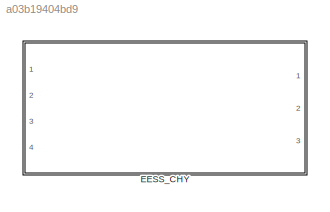
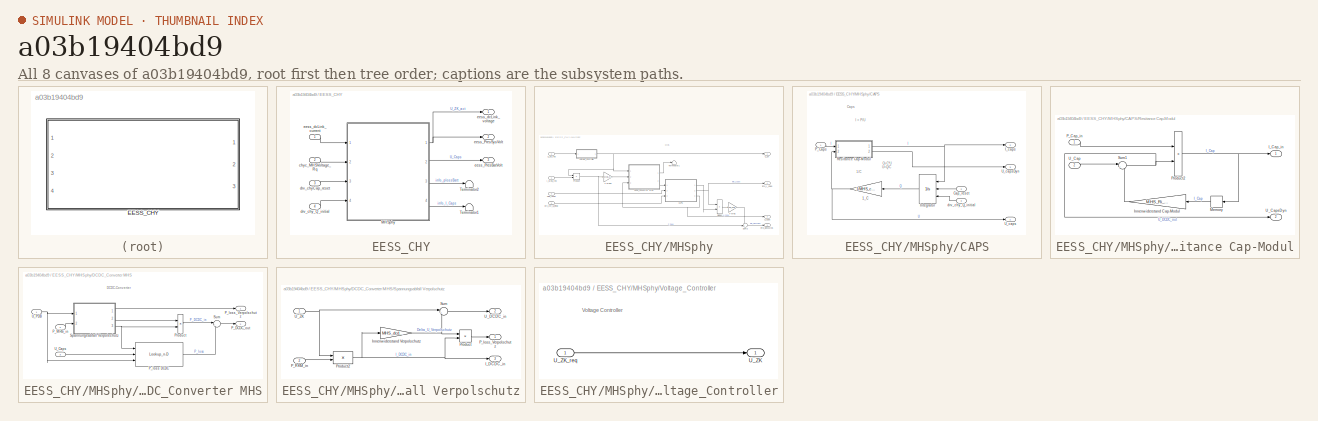
[diagram: thumbnail index - all 8 canvases of the model, root first then tree order]
MODEL slx_a03b19404bd9
KIND library
CONFIG AbsTol = auto
CONFIG FixedStep = auto
CONFIG MaxStep = auto
CONFIG MinStep = auto
CONFIG RelTol = 1e-3
CONFIG SampleTimeConstraint = Unconstrained
CONFIG Solver = ode45
CONFIG SolverMode = Auto
CONFIG SolverName = ode45
CONFIG StartTime = 0.0
CONFIG StopTime = 10.0
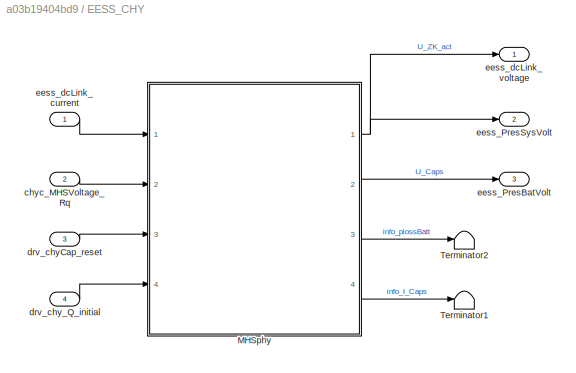
BLOCK [SubSystem] EESS_CHY
  Ports = [4, 3]
  RequestExecContextInheritance = off
  Variant = off
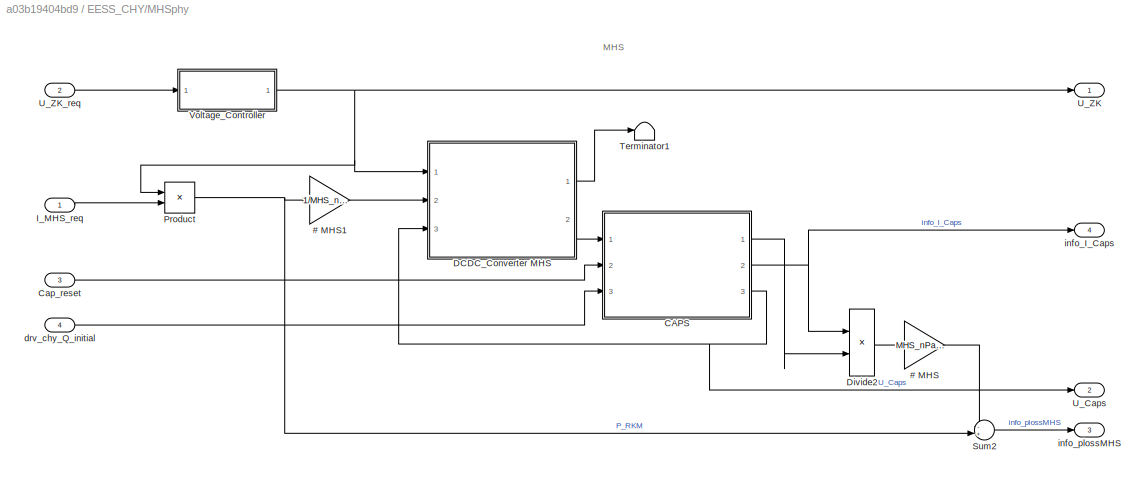
BLOCK [SubSystem] EESS_CHY/MHSphy
  Ports = [4, 4]
  RequestExecContextInheritance = off
  Variant = off
BLOCK [Gain] EESS_CHY/MHSphy/# MHS
  Gain = MHS_nParallel
  OutDataTypeStr = Inherit: Inherit via internal rule
  ParamDataTypeStr = Inherit: Inherit via internal rule
  SaturateOnIntegerOverflow = off
BLOCK [Gain] EESS_CHY/MHSphy/# MHS1
  Gain = 1/MHS_nParallel
  OutDataTypeStr = Inherit: Inherit via internal rule
  ParamDataTypeStr = Inherit: Inherit via internal rule
  SaturateOnIntegerOverflow = off
BLOCK [SubSystem] EESS_CHY/MHSphy/CAPS
  Ports = [3, 3]
  RequestExecContextInheritance = off
  Variant = off
BLOCK [Gain] EESS_CHY/MHSphy/CAPS/1_C
  Gain = 1/MHS_capacity
  OutDataTypeStr = Inherit: Inherit via internal rule
  ParamDataTypeStr = Inherit: Inherit via internal rule
  SaturateOnIntegerOverflow = off
BLOCK [Inport] EESS_CHY/MHSphy/CAPS/Cap_reset
  IconDisplay = Port number
  Port = 2
BLOCK [Outport] EESS_CHY/MHSphy/CAPS/I_caps
  IconDisplay = Port number
  Port = 2
BLOCK [Integrator] EESS_CHY/MHSphy/CAPS/Integrator
  ExternalReset = rising
  InitialCondition = (sqrt((0.5*(21.6^2-12^2))+12^2))*750
  InitialConditionSource = external
  LowerSaturationLimit = -20000
  Ports = [3, 1]
  UpperSaturationLimit = 16300
BLOCK [Inport] EESS_CHY/MHSphy/CAPS/P_Caps
  IconDisplay = Port number
BLOCK [SubSystem] EESS_CHY/MHSphy/CAPS/Resitance Cap-Modul
  Ports = [2, 2]
  RequestExecContextInheritance = off
  Variant = off
BLOCK [Outport] EESS_CHY/MHSphy/CAPS/Resitance Cap-Modul/I_Cap_in
  IconDisplay = Port number
BLOCK [Gain] EESS_CHY/MHSphy/CAPS/Resitance Cap-Modul/Innenwiderstand Cap-Modul
  Gain = MHS_Ri_Caps
  OutDataTypeStr = Inherit: Inherit via internal rule
  ParamDataTypeStr = Inherit: Inherit via internal rule
  SaturateOnIntegerOverflow = off
BLOCK [Memory] EESS_CHY/MHSphy/CAPS/Resitance Cap-Modul/Memory
BLOCK [Inport] EESS_CHY/MHSphy/CAPS/Resitance Cap-Modul/P_Cap_in
  IconDisplay = Port number
BLOCK [Product] EESS_CHY/MHSphy/CAPS/Resitance Cap-Modul/Product2
  InputSameDT = off
  Inputs = */
  OutDataTypeStr = Inherit: Inherit via internal rule
  Ports = [2, 1]
  SaturateOnIntegerOverflow = off
BLOCK [Sum] EESS_CHY/MHSphy/CAPS/Resitance Cap-Modul/Sum1
  IconShape = round
  InputSameDT = off
  Inputs = |++
  OutDataTypeStr = Inherit: Inherit via internal rule
  Ports = [2, 1]
  SaturateOnIntegerOverflow = off
BLOCK [Inport] EESS_CHY/MHSphy/CAPS/Resitance Cap-Modul/U_Cap
  IconDisplay = Port number
  Port = 2
BLOCK [Outport] EESS_CHY/MHSphy/CAPS/Resitance Cap-Modul/U_CapsDyn
  IconDisplay = Port number
  Port = 2
BLOCK [Outport] EESS_CHY/MHSphy/CAPS/U_caps
  IconDisplay = Port number
BLOCK [Outport] EESS_CHY/MHSphy/CAPS/U_capsDyn
  IconDisplay = Port number
  Port = 3
BLOCK [Inport] EESS_CHY/MHSphy/CAPS/drv_chy_Q_initial
  IconDisplay = Port number
  Port = 3
BLOCK [Inport] EESS_CHY/MHSphy/Cap_reset 
  IconDisplay = Port number
  Port = 3
BLOCK [SubSystem] EESS_CHY/MHSphy/DCDC_Converter MHS
  Ports = [3, 2]
  RequestExecContextInheritance = off
  Variant = off
BLOCK [Outport] EESS_CHY/MHSphy/DCDC_Converter MHS/P_DCDC_out
  IconDisplay = Port number
  Port = 2
BLOCK [Inport] EESS_CHY/MHSphy/DCDC_Converter MHS/P_MHS_in
  IconDisplay = Port number
  Port = 2
BLOCK [Lookup_n-D] EESS_CHY/MHSphy/DCDC_Converter MHS/P_loss DCDC
  BreakpointsForDimension1 = MHS_dcdc_I_ZK
  BreakpointsForDimension2 = MHS_dcdc_U_Cap
  BreakpointsForDimension3 = MHS_dcdc_U_ZK
  NumberOfTableDimensions = 3
  Ports = [3, 1]
  RndMeth = Simplest
  Table = MHS_dcdc_Ploss
BLOCK [Outport] EESS_CHY/MHSphy/DCDC_Converter MHS/P_loss_Verpolschutz
  IconDisplay = Port number
BLOCK [Product] EESS_CHY/MHSphy/DCDC_Converter MHS/Product
  InputSameDT = off
  OutDataTypeStr = Inherit: Inherit via internal rule
  Ports = [2, 1]
  SaturateOnIntegerOverflow = off
BLOCK [SubSystem] EESS_CHY/MHSphy/DCDC_Converter MHS/Spannungsabfall Verpolschutz
  Ports = [2, 3]
  RequestExecContextInheritance = off
  Variant = off
BLOCK [Outport] EESS_CHY/MHSphy/DCDC_Converter MHS/Spannungsabfall Verpolschutz/I_DCDC_in
  IconDisplay = Port number
  Port = 3
BLOCK [Gain] EESS_CHY/MHSphy/DCDC_Converter MHS/Spannungsabfall Verpolschutz/Innenwiderstand Verpolschutz
  Gain = MHS_dcdc_Ri_Verpolschutz
  OutDataTypeStr = Inherit: Inherit via internal rule
  ParamDataTypeStr = Inherit: Inherit via internal rule
  SaturateOnIntegerOverflow = off
BLOCK [Inport] EESS_CHY/MHSphy/DCDC_Converter MHS/Spannungsabfall Verpolschutz/P_RKM_in
  IconDisplay = Port number
  Port = 2
BLOCK [Outport] EESS_CHY/MHSphy/DCDC_Converter MHS/Spannungsabfall Verpolschutz/P_loss_Verpolschutz
  IconDisplay = Port number
BLOCK [Product] EESS_CHY/MHSphy/DCDC_Converter MHS/Spannungsabfall Verpolschutz/Product
  InputSameDT = off
  OutDataTypeStr = Inherit: Inherit via internal rule
  Ports = [2, 1]
  SaturateOnIntegerOverflow = off
BLOCK [Product] EESS_CHY/MHSphy/DCDC_Converter MHS/Spannungsabfall Verpolschutz/Product2
  InputSameDT = off
  Inputs = /*
  OutDataTypeStr = Inherit: Inherit via internal rule
  Ports = [2, 1]
  SaturateOnIntegerOverflow = off
BLOCK [Sum] EESS_CHY/MHSphy/DCDC_Converter MHS/Spannungsabfall Verpolschutz/Sum
  IconShape = round
  InputSameDT = off
  Inputs = |+-
  OutDataTypeStr = Inherit: Inherit via internal rule
  Ports = [2, 1]
  SaturateOnIntegerOverflow = off
BLOCK [Outport] EESS_CHY/MHSphy/DCDC_Converter MHS/Spannungsabfall Verpolschutz/U_DCDC_in
  IconDisplay = Port number
  Port = 2
BLOCK [Inport] EESS_CHY/MHSphy/DCDC_Converter MHS/Spannungsabfall Verpolschutz/U_ZK
  IconDisplay = Port number
BLOCK [Sum] EESS_CHY/MHSphy/DCDC_Converter MHS/Sum
  IconShape = round
  InputSameDT = off
  Inputs = |+-
  OutDataTypeStr = Inherit: Inherit via internal rule
  Ports = [2, 1]
  SaturateOnIntegerOverflow = off
BLOCK [Inport] EESS_CHY/MHSphy/DCDC_Converter MHS/U_Caps
  IconDisplay = Port number
  Port = 3
BLOCK [Inport] EESS_CHY/MHSphy/DCDC_Converter MHS/U_PDB
  IconDisplay = Port number
BLOCK [Product] EESS_CHY/MHSphy/Divide2
  InputSameDT = off
  OutDataTypeStr = Inherit: Inherit via internal rule
  Ports = [2, 1]
  RndMeth = Floor
  SaturateOnIntegerOverflow = off
BLOCK [Inport] EESS_CHY/MHSphy/I_MHS_req 
  IconDisplay = Port number
BLOCK [Product] EESS_CHY/MHSphy/Product
  InputSameDT = off
  OutDataTypeStr = Inherit: Inherit via internal rule
  Ports = [2, 1]
  SaturateOnIntegerOverflow = off
BLOCK [Sum] EESS_CHY/MHSphy/Sum2
  IconShape = round
  InputSameDT = off
  Inputs = -+|
  OutDataTypeStr = Inherit: Inherit via internal rule
  Ports = [2, 1]
  SaturateOnIntegerOverflow = off
BLOCK [Terminator] EESS_CHY/MHSphy/Terminator1
BLOCK [Outport] EESS_CHY/MHSphy/U_Caps
  IconDisplay = Port number
  InitialOutput = 0
  Port = 2
BLOCK [Outport] EESS_CHY/MHSphy/U_ZK
  IconDisplay = Port number
  InitialOutput = 0
BLOCK [Inport] EESS_CHY/MHSphy/U_ZK_req
  IconDisplay = Port number
  Port = 2
BLOCK [SubSystem] EESS_CHY/MHSphy/Voltage_Controller
  Ports = [1, 1]
  RequestExecContextInheritance = off
  Variant = off
BLOCK [Outport] EESS_CHY/MHSphy/Voltage_Controller/U_ZK
  IconDisplay = Port number
BLOCK [Inport] EESS_CHY/MHSphy/Voltage_Controller/U_ZK_req
  IconDisplay = Port number
BLOCK [Inport] EESS_CHY/MHSphy/drv_chy_Q_initial
  IconDisplay = Port number
  Port = 4
BLOCK [Outport] EESS_CHY/MHSphy/info_I_Caps
  IconDisplay = Port number
  InitialOutput = 0
  Port = 4
BLOCK [Outport] EESS_CHY/MHSphy/info_plossMHS
  IconDisplay = Port number
  InitialOutput = 0
  Port = 3
BLOCK [Terminator] EESS_CHY/Terminator1
BLOCK [Terminator] EESS_CHY/Terminator2
BLOCK [Inport] EESS_CHY/chyc_MHSVoltage_Rq
  IconDisplay = Port number
  Port = 2
BLOCK [Inport] EESS_CHY/drv_chyCap_reset
  IconDisplay = Port number
  Port = 3
BLOCK [Inport] EESS_CHY/drv_chy_Q_initial
  IconDisplay = Port number
  Port = 4
BLOCK [Outport] EESS_CHY/eess_PresBatVolt
  IconDisplay = Port number
  InitialOutput = 0
  Port = 3
BLOCK [Outport] EESS_CHY/eess_PresSysVolt
  IconDisplay = Port number
  InitialOutput = 0
  Port = 2
BLOCK [Inport] EESS_CHY/eess_dcLink_current
  IconDisplay = Port number
BLOCK [Outport] EESS_CHY/eess_dcLink_voltage
  IconDisplay = Port number
  InitialOutput = 0
ANNOTATION EESS_CHY/MHSphy: MHS
ANNOTATION EESS_CHY/MHSphy/CAPS: 1/C
ANNOTATION EESS_CHY/MHSphy/CAPS: Caps
ANNOTATION EESS_CHY/MHSphy/CAPS: I = P/U
ANNOTATION EESS_CHY/MHSphy/CAPS: Q=C*U U=Q/C
ANNOTATION EESS_CHY/MHSphy/DCDC_Converter MHS: DCDC-Converter
ANNOTATION EESS_CHY/MHSphy/Voltage_Controller: Voltage Controller
LINE EESS_CHY/MHSphy/# MHS1:1 -> EESS_CHY/MHSphy/DCDC_Converter MHS:2
LINE EESS_CHY/MHSphy/# MHS:1 -> EESS_CHY/MHSphy/Sum2:1
NET EESS_CHY/MHSphy/CAPS/1_C:1 -> EESS_CHY/MHSphy/CAPS/Resitance Cap-Modul:2, EESS_CHY/MHSphy/CAPS/U_caps:1
LINE EESS_CHY/MHSphy/CAPS/Cap_reset:1 -> EESS_CHY/MHSphy/CAPS/Integrator:2
LINE EESS_CHY/MHSphy/CAPS/Integrator:1 -> EESS_CHY/MHSphy/CAPS/1_C:1
LINE EESS_CHY/MHSphy/CAPS/P_Caps:1 -> EESS_CHY/MHSphy/CAPS/Resitance Cap-Modul:1
LINE EESS_CHY/MHSphy/CAPS/Resitance Cap-Modul/Innenwiderstand Cap-Modul:1 -> EESS_CHY/MHSphy/CAPS/Resitance Cap-Modul/Sum1:2
LINE EESS_CHY/MHSphy/CAPS/Resitance Cap-Modul/Memory:1 -> EESS_CHY/MHSphy/CAPS/Resitance Cap-Modul/Innenwiderstand Cap-Modul:1
LINE EESS_CHY/MHSphy/CAPS/Resitance Cap-Modul/P_Cap_in:1 -> EESS_CHY/MHSphy/CAPS/Resitance Cap-Modul/Product2:1
NET EESS_CHY/MHSphy/CAPS/Resitance Cap-Modul/Product2:1 -> EESS_CHY/MHSphy/CAPS/Resitance Cap-Modul/I_Cap_in:1, EESS_CHY/MHSphy/CAPS/Resitance Cap-Modul/Memory:1
NET EESS_CHY/MHSphy/CAPS/Resitance Cap-Modul/Sum1:1 -> EESS_CHY/MHSphy/CAPS/Resitance Cap-Modul/Product2:2, EESS_CHY/MHSphy/CAPS/Resitance Cap-Modul/U_CapsDyn:1
LINE EESS_CHY/MHSphy/CAPS/Resitance Cap-Modul/U_Cap:1 -> EESS_CHY/MHSphy/CAPS/Resitance Cap-Modul/Sum1:1
NET EESS_CHY/MHSphy/CAPS/Resitance Cap-Modul:1 -> EESS_CHY/MHSphy/CAPS/I_caps:1, EESS_CHY/MHSphy/CAPS/Integrator:1
LINE EESS_CHY/MHSphy/CAPS/Resitance Cap-Modul:2 -> EESS_CHY/MHSphy/CAPS/U_capsDyn:1
LINE EESS_CHY/MHSphy/CAPS/drv_chy_Q_initial:1 -> EESS_CHY/MHSphy/CAPS/Integrator:3
LINE EESS_CHY/MHSphy/CAPS:1 -> EESS_CHY/MHSphy/Divide2:2
NET EESS_CHY/MHSphy/CAPS:2 -> EESS_CHY/MHSphy/Divide2:1, EESS_CHY/MHSphy/info_I_Caps:1
NET EESS_CHY/MHSphy/CAPS:3 -> EESS_CHY/MHSphy/DCDC_Converter MHS:3, EESS_CHY/MHSphy/U_Caps:1
LINE EESS_CHY/MHSphy/Cap_reset :1 -> EESS_CHY/MHSphy/CAPS:2
LINE EESS_CHY/MHSphy/DCDC_Converter MHS/P_MHS_in:1 -> EESS_CHY/MHSphy/DCDC_Converter MHS/Spannungsabfall Verpolschutz:2
LINE EESS_CHY/MHSphy/DCDC_Converter MHS/P_loss DCDC:1 -> EESS_CHY/MHSphy/DCDC_Converter MHS/Sum:2
LINE EESS_CHY/MHSphy/DCDC_Converter MHS/Product:1 -> EESS_CHY/MHSphy/DCDC_Converter MHS/Sum:1
NET EESS_CHY/MHSphy/DCDC_Converter MHS/Spannungsabfall Verpolschutz/Innenwiderstand Verpolschutz:1 -> EESS_CHY/MHSphy/DCDC_Converter MHS/Spannungsabfall Verpolschutz/Product:1, EESS_CHY/MHSphy/DCDC_Converter MHS/Spannungsabfall Verpolschutz/Sum:2
LINE EESS_CHY/MHSphy/DCDC_Converter MHS/Spannungsabfall Verpolschutz/P_RKM_in:1 -> EESS_CHY/MHSphy/DCDC_Converter MHS/Spannungsabfall Verpolschutz/Product2:2
NET EESS_CHY/MHSphy/DCDC_Converter MHS/Spannungsabfall Verpolschutz/Product2:1 -> EESS_CHY/MHSphy/DCDC_Converter MHS/Spannungsabfall Verpolschutz/I_DCDC_in:1, EESS_CHY/MHSphy/DCDC_Converter MHS/Spannungsabfall Verpolschutz/Innenwiderstand Verpolschutz:1, EESS_CHY/MHSphy/DCDC_Converter MHS/Spannungsabfall Verpolschutz/Product:2
LINE EESS_CHY/MHSphy/DCDC_Converter MHS/Spannungsabfall Verpolschutz/Product:1 -> EESS_CHY/MHSphy/DCDC_Converter MHS/Spannungsabfall Verpolschutz/P_loss_Verpolschutz:1
LINE EESS_CHY/MHSphy/DCDC_Converter MHS/Spannungsabfall Verpolschutz/Sum:1 -> EESS_CHY/MHSphy/DCDC_Converter MHS/Spannungsabfall Verpolschutz/U_DCDC_in:1
NET EESS_CHY/MHSphy/DCDC_Converter MHS/Spannungsabfall Verpolschutz/U_ZK:1 -> EESS_CHY/MHSphy/DCDC_Converter MHS/Spannungsabfall Verpolschutz/Product2:1, EESS_CHY/MHSphy/DCDC_Converter MHS/Spannungsabfall Verpolschutz/Sum:1
LINE EESS_CHY/MHSphy/DCDC_Converter MHS/Spannungsabfall Verpolschutz:1 -> EESS_CHY/MHSphy/DCDC_Converter MHS/P_loss_Verpolschutz:1
LINE EESS_CHY/MHSphy/DCDC_Converter MHS/Spannungsabfall Verpolschutz:2 -> EESS_CHY/MHSphy/DCDC_Converter MHS/Product:1
NET EESS_CHY/MHSphy/DCDC_Converter MHS/Spannungsabfall Verpolschutz:3 -> EESS_CHY/MHSphy/DCDC_Converter MHS/P_loss DCDC:1, EESS_CHY/MHSphy/DCDC_Converter MHS/Product:2
LINE EESS_CHY/MHSphy/DCDC_Converter MHS/Sum:1 -> EESS_CHY/MHSphy/DCDC_Converter MHS/P_DCDC_out:1
LINE EESS_CHY/MHSphy/DCDC_Converter MHS/U_Caps:1 -> EESS_CHY/MHSphy/DCDC_Converter MHS/P_loss DCDC:2
NET EESS_CHY/MHSphy/DCDC_Converter MHS/U_PDB:1 -> EESS_CHY/MHSphy/DCDC_Converter MHS/P_loss DCDC:3, EESS_CHY/MHSphy/DCDC_Converter MHS/Spannungsabfall Verpolschutz:1
LINE EESS_CHY/MHSphy/DCDC_Converter MHS:1 -> EESS_CHY/MHSphy/Terminator1:1
LINE EESS_CHY/MHSphy/DCDC_Converter MHS:2 -> EESS_CHY/MHSphy/CAPS:1
LINE EESS_CHY/MHSphy/Divide2:1 -> EESS_CHY/MHSphy/# MHS:1
LINE EESS_CHY/MHSphy/I_MHS_req :1 -> EESS_CHY/MHSphy/Product:2
NET EESS_CHY/MHSphy/Product:1 -> EESS_CHY/MHSphy/# MHS1:1, EESS_CHY/MHSphy/Sum2:2
LINE EESS_CHY/MHSphy/Sum2:1 -> EESS_CHY/MHSphy/info_plossMHS:1
LINE EESS_CHY/MHSphy/U_ZK_req:1 -> EESS_CHY/MHSphy/Voltage_Controller:1
LINE EESS_CHY/MHSphy/Voltage_Controller/U_ZK_req:1 -> EESS_CHY/MHSphy/Voltage_Controller/U_ZK:1
NET EESS_CHY/MHSphy/Voltage_Controller:1 -> EESS_CHY/MHSphy/DCDC_Converter MHS:1, EESS_CHY/MHSphy/Product:1, EESS_CHY/MHSphy/U_ZK:1
LINE EESS_CHY/MHSphy/drv_chy_Q_initial:1 -> EESS_CHY/MHSphy/CAPS:3
NET EESS_CHY/MHSphy:1 -> EESS_CHY/eess_PresSysVolt:1, EESS_CHY/eess_dcLink_voltage:1
LINE EESS_CHY/MHSphy:2 -> EESS_CHY/eess_PresBatVolt:1
LINE EESS_CHY/MHSphy:3 -> EESS_CHY/Terminator2:1
LINE EESS_CHY/MHSphy:4 -> EESS_CHY/Terminator1:1
LINE EESS_CHY/chyc_MHSVoltage_Rq:1 -> EESS_CHY/MHSphy:2
LINE EESS_CHY/drv_chyCap_reset:1 -> EESS_CHY/MHSphy:3
LINE EESS_CHY/drv_chy_Q_initial:1 -> EESS_CHY/MHSphy:4
LINE EESS_CHY/eess_dcLink_current:1 -> EESS_CHY/MHSphy:1
note: NET lines group one-source signal fan-out (src -> all destinations, sorted); 1:1 wires keep LINE
